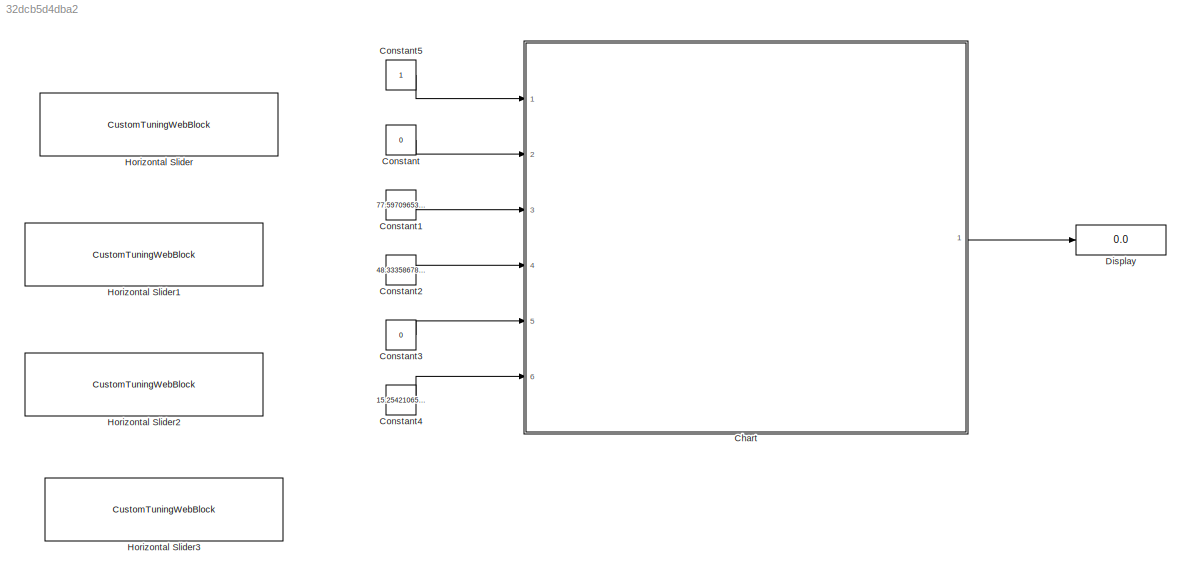
MODEL slx_32dcb5d4dba2
KIND model
CONFIG AbsTol = auto
CONFIG EnableMultiTasking = off
CONFIG FixedStep = auto
CONFIG MaxStep = auto
CONFIG MinStep = auto
CONFIG RelTol = 1e-3
CONFIG SampleTimeConstraint = Unconstrained
CONFIG SolverName = VariableStepAuto
CONFIG StartTime = 0.0
CONFIG StopTime = inf
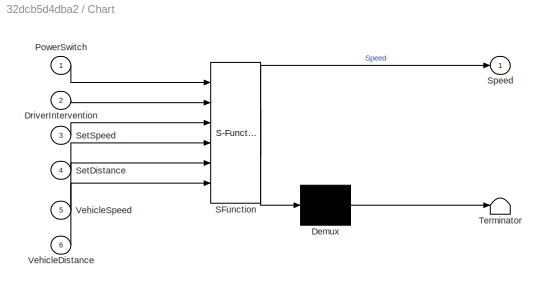
BLOCK [SubSystem] Chart
  ErrorFcn = Stateflow.Translate.translate
  PermitHierarchicalResolution = ExplicitOnly
  Ports = [6, 1]
  RequestExecContextInheritance = off
  SFBlockType = Chart
  TreatAsAtomicUnit = on
BLOCK [Demux] Chart/ Demux 
  Outputs = 1
  Ports = [1, 1]
BLOCK [S-Function] Chart/ SFunction 
  EnableBusSupport = on
  FunctionName = sf_sfun
  PortCounts = [6 2]
  Ports = [6, 2]
  SFcnIsStateOwnerBlock = off
  SFunctionDeploymentMode = off
  Tag = Stateflow S-Function 3
BLOCK [Terminator] Chart/ Terminator 
BLOCK [Inport] Chart/DriverIntervention
  Port = 2
BLOCK [Inport] Chart/PowerSwitch
BLOCK [Inport] Chart/SetDistance
  Port = 4
BLOCK [Inport] Chart/SetSpeed
  Port = 3
BLOCK [Outport] Chart/Speed
BLOCK [Inport] Chart/VehicleDistance
  Port = 6
BLOCK [Inport] Chart/VehicleSpeed
  Port = 5
BLOCK [Constant] Constant
  Value = 0
BLOCK [Constant] Constant1
  Value = 77.59709653092006
BLOCK [Constant] Constant2
  Value = 48.33358678021087
BLOCK [Constant] Constant3
  Value = 0
BLOCK [Constant] Constant4
  Value = 15.25421065862242
BLOCK [Constant] Constant5
BLOCK [Display] Display
  Decimation = 1
  Ports = [1]
BLOCK [CustomTuningWebBlock] Horizontal Slider
  Configuration = {"components":[{"name":"LinearScaleComponent","settings":{"bounds":{"max":100,"min":0,"tickInterval":"auto"},"internalTickHeightScaleFactor":0.5,"labelColor":[255,255,200],"labelFont":{"font":"Arial","fontSize":12},"labelTransparency":1,"needleImage":{"size":[596,842],"src":"data:image\/svg+xml;base64,PD94bWwgdmVyc2lvbj0iMS4wIiBlbmNvZGluZz0idXRmLTgiPz4NCjwhLS0gR2VuZXJhdG9yOiBBZG9iZSBJbGx1c3RyYXRvc...<+5410ch>  <repeated x4 — deduplicated; at blocks: Horizontal Slider, Horizontal Slider1, Horizontal Slider2, Horizontal Slider3>
  LabelPosition = Hide
  ShowInitialText = on
BLOCK [CustomTuningWebBlock] Horizontal Slider1
  LabelPosition = Hide
  ShowInitialText = on
BLOCK [CustomTuningWebBlock] Horizontal Slider2
  LabelPosition = Hide
  ShowInitialText = on
BLOCK [CustomTuningWebBlock] Horizontal Slider3
  LabelPosition = Hide
  ShowInitialText = on
LINE Chart:1 -> Display:1
LINE Constant1:1 -> Chart:3
LINE Constant2:1 -> Chart:4
LINE Constant3:1 -> Chart:5
LINE Constant4:1 -> Chart:6
LINE Constant5:1 -> Chart:1
LINE Constant:1 -> Chart:2
CHART Chart states=4 transitions=5
  STATE_LABEL ' AdjustSpeed\nif VehicleSpeed>SetSpeed\n    Speed = SetSpeed;\nelseif VehicleSpeed==0\n    Speed=0;\nelse\n    Speed = max(0,VehicleSpeed-5);\nend\n'
  STATE_LABEL 'PowerOnoff\n'
  STATE_LABEL 'ACC_On'
  STATE_LABEL 'MaintainSpeed\nSpeed = SetSpeed\nif VehicleDistance==0\n    Speed=0\nend'
CHART  states=0 transitions=0
